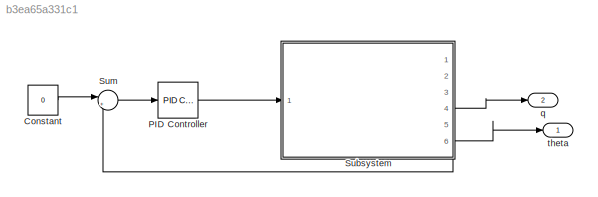
MODEL slx_b3ea65a331c1
KIND model
CONFIG AbsTol = auto
CONFIG EnableMultiTasking = off
CONFIG FixedStep = auto
CONFIG MaxStep = auto
CONFIG MinStep = auto
CONFIG RelTol = 1e-3
CONFIG SampleTimeConstraint = Unconstrained
CONFIG Solver = VariableStepAuto
CONFIG SolverName = VariableStepAuto
CONFIG StartTime = 0.0
CONFIG StopTime = 10
BLOCK [Constant] Constant
  Value = 0
BLOCK [Reference] PID Controller  REF=simulink/Continuous/PID Controller
  Ports = [1, 1]
  SourceBlock = simulink/Continuous/PID Controller
  SourceProductBaseCode = SL
  SourceType = PID 1dof
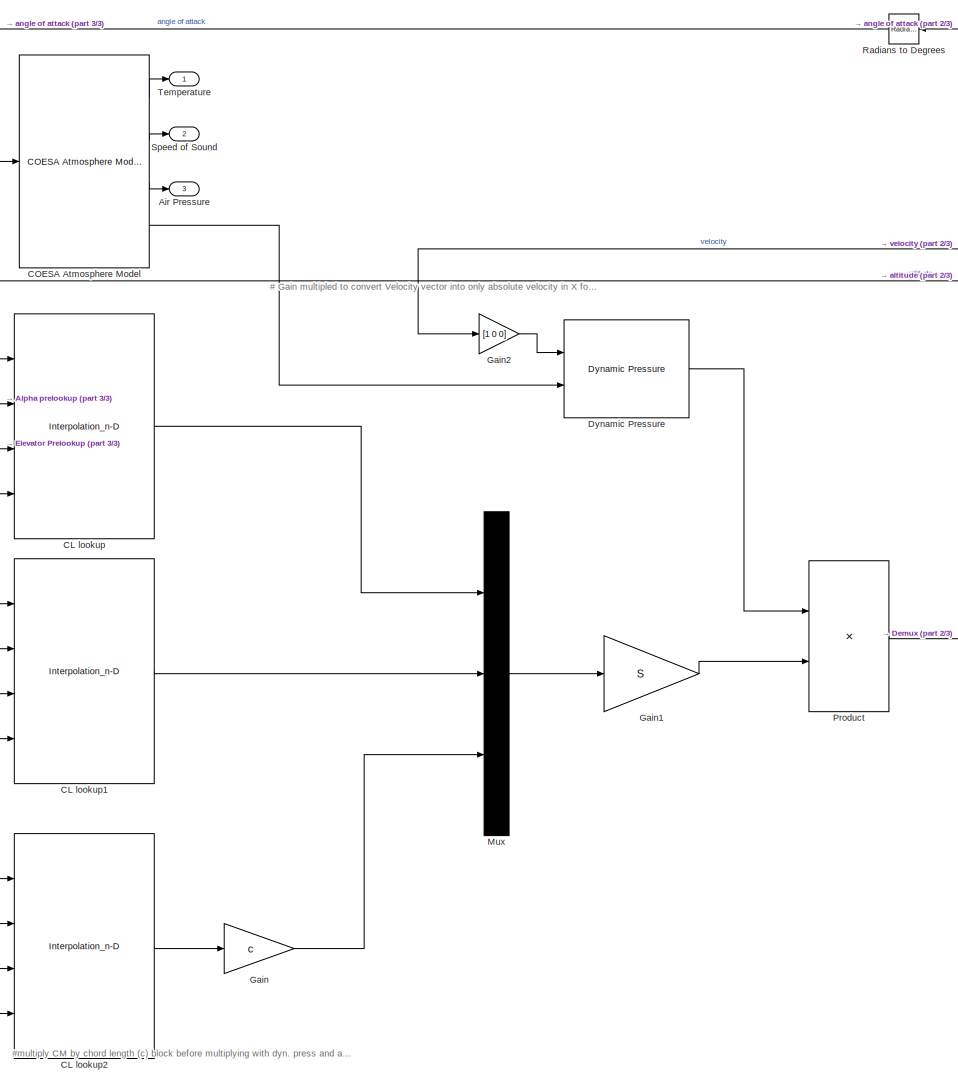
[diagram: Subsystem - part 1/3, center side, full height]
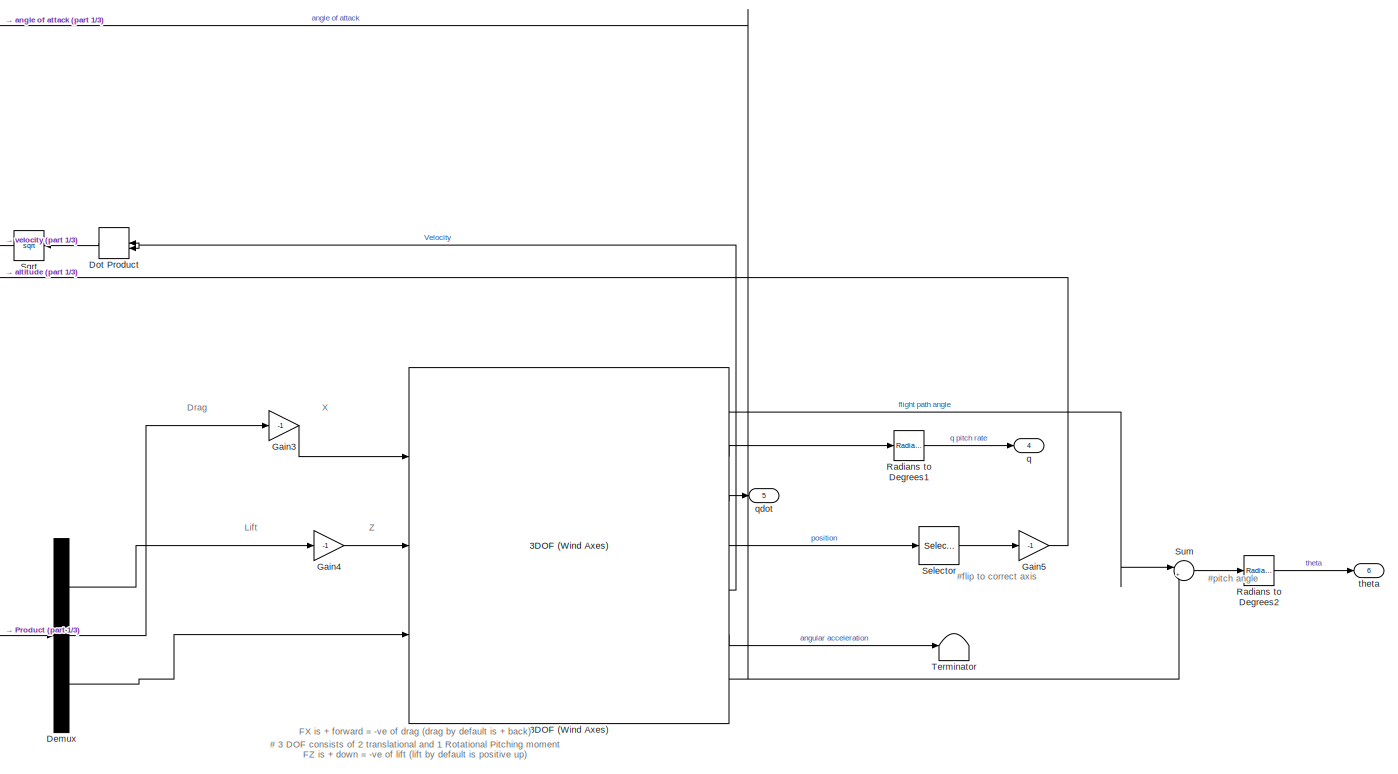
[diagram: Subsystem - part 2/3, middle right region]
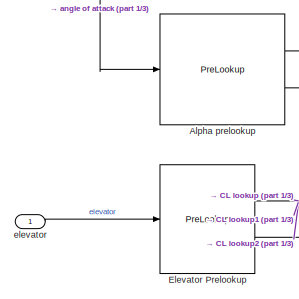
[diagram: Subsystem - part 3/3, middle left region]
BLOCK [SubSystem] Subsystem
  Ports = [1, 6]
  RequestExecContextInheritance = off
BLOCK [Reference] Subsystem/3DOF (Wind Axes)  REF=aerolib3dof2/3DOF (Wind Axes)
  Ports = [3, 7]
  SourceBlock = aerolib3dof2/3DOF (Wind Axes)
  SourceProductBaseCode = AE
  SourceType = 3DOF Wind EoM
BLOCK [Outport] Subsystem/Air Pressure
  Port = 3
BLOCK [PreLookup] Subsystem/Alpha prelookup
  BreakpointsData = alpha
  ExtrapMethod = Linear
  InputPortMap = u0
  Ports = [1, 2]
BLOCK [Interpolation_n-D] Subsystem/CL lookup
  InputPortMap = u0,u1,u2,u3
  IntermediateResultsDataTypeStr = Inherit: Inherit via internal rule
  InternalRulePriority = Speed
  Ports = [4, 1]
  Table = CL
BLOCK [Interpolation_n-D] Subsystem/CL lookup1
  InputPortMap = u0,u1,u2,u3
  IntermediateResultsDataTypeStr = Inherit: Inherit via internal rule
  InternalRulePriority = Speed
  Ports = [4, 1]
  Table = CD
BLOCK [Interpolation_n-D] Subsystem/CL lookup2
  InputPortMap = u0,u1,u2,u3
  IntermediateResultsDataTypeStr = Inherit: Inherit via internal rule
  InternalRulePriority = Speed
  Ports = [4, 1]
  Table = CM
BLOCK [Reference] Subsystem/COESA Atmosphere Model  REF=aerolibatmos2/COESA Atmosphere Model
  Ports = [1, 4]
  SourceBlock = aerolibatmos2/COESA Atmosphere Model
  SourceProductBaseCode = AE
  SourceType = Atmosphere Model
BLOCK [Demux] Subsystem/Demux
  Outputs = 3
  Ports = [1, 3]
BLOCK [DotProduct] Subsystem/Dot Product
  OutDataTypeStr = Inherit: Inherit via internal rule
BLOCK [Reference] Subsystem/Dynamic Pressure  REF=aerolibasang/Dynamic Pressure
  Ports = [2, 1]
  SourceBlock = aerolibasang/Dynamic Pressure
  SourceProductBaseCode = AE
  SourceType = Dynamic Pressure
BLOCK [PreLookup] Subsystem/Elevator Prelookup
  BreakpointsData = elevator
  ExtrapMethod = Linear
  InputPortMap = u0
  Ports = [1, 2]
BLOCK [Gain] Subsystem/Gain
  Gain = c
BLOCK [Gain] Subsystem/Gain1
  Gain = S
BLOCK [Gain] Subsystem/Gain2
  Gain = [1 0 0]
BLOCK [Gain] Subsystem/Gain3
  Gain = -1
BLOCK [Gain] Subsystem/Gain4
  Gain = -1
BLOCK [Gain] Subsystem/Gain5
  Gain = -1
BLOCK [Mux] Subsystem/Mux
  DisplayOption = bar
  Inputs = 3
  Ports = [3, 1]
BLOCK [Product] Subsystem/Product
  Ports = [2, 1]
BLOCK [Reference] Subsystem/Radians to Degrees  REF=simulink_extras/Transformations/Radians
to Degrees
  Ports = [1, 1]
  SourceBlock = simulink_extras/Transformations/Radians\nto Degrees
  SourceProductBaseCode = SL
  SourceType = RadiansToDegrees
BLOCK [Reference] Subsystem/Radians to Degrees1  REF=simulink_extras/Transformations/Radians
to Degrees
  Ports = [1, 1]
  SourceBlock = simulink_extras/Transformations/Radians\nto Degrees
  SourceProductBaseCode = SL
  SourceType = RadiansToDegrees
BLOCK [Reference] Subsystem/Radians to Degrees2  REF=simulink_extras/Transformations/Radians
to Degrees
  Ports = [1, 1]
  SourceBlock = simulink_extras/Transformations/Radians\nto Degrees
  SourceProductBaseCode = SL
  SourceType = RadiansToDegrees
BLOCK [Selector] Subsystem/Selector
  IndexOptions = Index vector (dialog)
  Indices = 2
  InputPortWidth = 2
  OutputSizes = 1
  Ports = [1, 1]
BLOCK [Outport] Subsystem/Speed of Sound
  Port = 2
BLOCK [Sqrt] Subsystem/Sqrt
BLOCK [Sum] Subsystem/Sum
  Inputs = |++
  Ports = [2, 1]
BLOCK [Outport] Subsystem/Temperature
BLOCK [Terminator] Subsystem/Terminator
BLOCK [Inport] Subsystem/elevator
BLOCK [Outport] Subsystem/q
  Port = 4
BLOCK [Outport] Subsystem/qdot
  Port = 5
BLOCK [Outport] Subsystem/theta
  Port = 6
BLOCK [Sum] Sum
  Inputs = |+-
  Ports = [2, 1]
BLOCK [Outport] q
  Port = 2
BLOCK [Outport] theta
ANNOTATION Subsystem: # 3 DOF consists of 2 translational and 1 Rotational Pitching moment FX is + forward = -ve of drag (drag by default is + back) FZ is + down = -ve of lift (lift by default is positive up)
ANNOTATION Subsystem: # Gain multipled to convert Velocity vector into only absolute velocity in X for Dyn Press
ANNOTATION Subsystem: #flip to correct axis
ANNOTATION Subsystem: #multiply CM by chord length (c) block before multiplying with dyn. press and area
ANNOTATION Subsystem: #pitch angle
ANNOTATION Subsystem: Drag
ANNOTATION Subsystem: Lift
ANNOTATION Subsystem: X
ANNOTATION Subsystem: Z
LINE Constant:1 -> Sum:1
LINE PID Controller:1 -> Subsystem:1
LINE Subsystem/3DOF (Wind Axes):1 -> Subsystem/Sum:1
LINE Subsystem/3DOF (Wind Axes):2 -> Subsystem/Radians to Degrees1:1
LINE Subsystem/3DOF (Wind Axes):3 -> Subsystem/qdot:1
LINE Subsystem/3DOF (Wind Axes):4 -> Subsystem/Selector:1
NET Subsystem/3DOF (Wind Axes):5 -> Subsystem/Dot Product:1, Subsystem/Dot Product:2
LINE Subsystem/3DOF (Wind Axes):6 -> Subsystem/Terminator:1
NET Subsystem/3DOF (Wind Axes):7 -> Subsystem/Radians to Degrees:1, Subsystem/Sum:2
NET Subsystem/Alpha prelookup:1 -> Subsystem/CL lookup1:1, Subsystem/CL lookup2:1, Subsystem/CL lookup:1
NET Subsystem/Alpha prelookup:2 -> Subsystem/CL lookup1:2, Subsystem/CL lookup2:2, Subsystem/CL lookup:2
LINE Subsystem/CL lookup1:1 -> Subsystem/Mux:2
LINE Subsystem/CL lookup2:1 -> Subsystem/Gain:1
LINE Subsystem/CL lookup:1 -> Subsystem/Mux:1
LINE Subsystem/COESA Atmosphere Model:1 -> Subsystem/Temperature:1
LINE Subsystem/COESA Atmosphere Model:2 -> Subsystem/Speed of Sound:1
LINE Subsystem/COESA Atmosphere Model:3 -> Subsystem/Air Pressure:1
LINE Subsystem/COESA Atmosphere Model:4 -> Subsystem/Dynamic Pressure:2
LINE Subsystem/Demux:1 -> Subsystem/Gain4:1
LINE Subsystem/Demux:2 -> Subsystem/Gain3:1
LINE Subsystem/Demux:3 -> Subsystem/3DOF (Wind Axes):3
LINE Subsystem/Dot Product:1 -> Subsystem/Sqrt:1
LINE Subsystem/Dynamic Pressure:1 -> Subsystem/Product:1
NET Subsystem/Elevator Prelookup:1 -> Subsystem/CL lookup1:3, Subsystem/CL lookup2:3, Subsystem/CL lookup:3
NET Subsystem/Elevator Prelookup:2 -> Subsystem/CL lookup1:4, Subsystem/CL lookup2:4, Subsystem/CL lookup:4
LINE Subsystem/Gain1:1 -> Subsystem/Product:2
LINE Subsystem/Gain2:1 -> Subsystem/Dynamic Pressure:1
LINE Subsystem/Gain3:1 -> Subsystem/3DOF (Wind Axes):1
LINE Subsystem/Gain4:1 -> Subsystem/3DOF (Wind Axes):2
LINE Subsystem/Gain5:1 -> Subsystem/COESA Atmosphere Model:1
LINE Subsystem/Gain:1 -> Subsystem/Mux:3
LINE Subsystem/Mux:1 -> Subsystem/Gain1:1
LINE Subsystem/Product:1 -> Subsystem/Demux:1
LINE Subsystem/Radians to Degrees1:1 -> Subsystem/q:1
LINE Subsystem/Radians to Degrees2:1 -> Subsystem/theta:1
LINE Subsystem/Radians to Degrees:1 -> Subsystem/Alpha prelookup:1
LINE Subsystem/Selector:1 -> Subsystem/Gain5:1
LINE Subsystem/Sqrt:1 -> Subsystem/Gain2:1
LINE Subsystem/Sum:1 -> Subsystem/Radians to Degrees2:1
LINE Subsystem/elevator:1 -> Subsystem/Elevator Prelookup:1
LINE Subsystem:4 -> q:1
NET Subsystem:6 -> Sum:2, theta:1
LINE Sum:1 -> PID Controller:1
note: NET lines group one-source signal fan-out (src -> all destinations, sorted); 1:1 wires keep LINE
